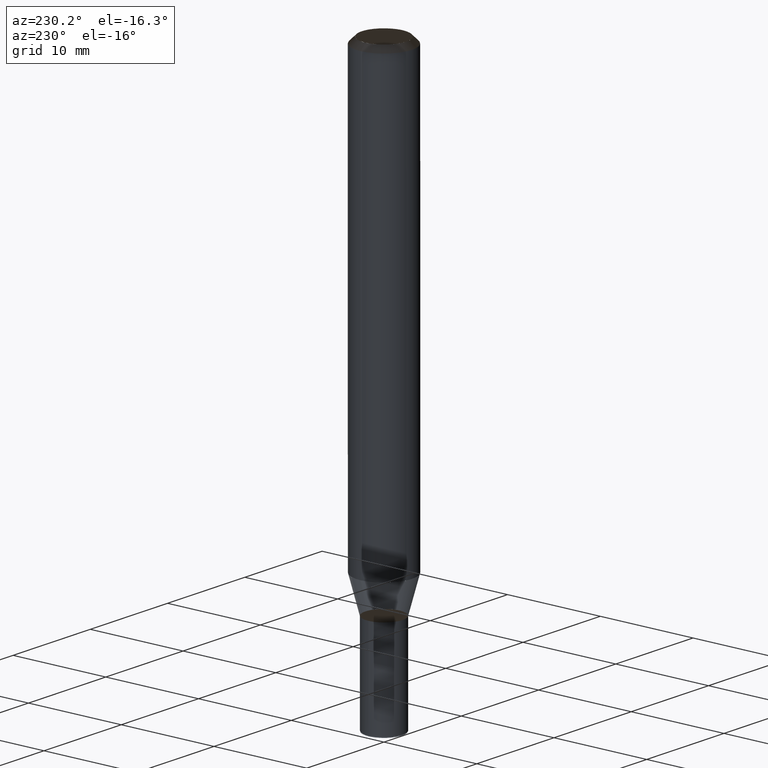
[diagram: clean part render]
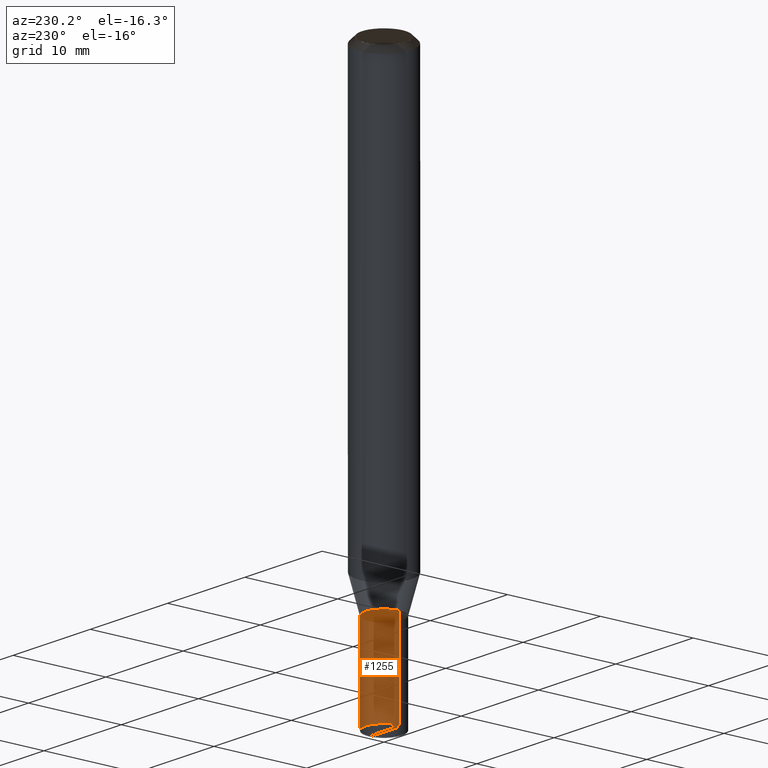
[diagram: same view with one face highlighted and labeled with its STEP entity id]
A machine part, auxiliary view. The second image highlights one B-rep face of the part: STEP entity #1255.
In plain terms, the highlighted face is a freeform B-spline surface patch.
Its self-contained STEP definition (entity closure, byte-faithful):
#1137=CARTESIAN_POINT('',(2.0,0.0,-13.632050807569));
#1138=CARTESIAN_POINT('',(2.0,2.0,-13.632050807569));
#1139=CARTESIAN_POINT('',(0.0,2.0,-13.632050807569));
#1140=CARTESIAN_POINT('',(-2.0,2.0,-13.632050807569));
#1141=CARTESIAN_POINT('',(-2.0,0.0,-13.632050807569));
#1142=CARTESIAN_POINT('',(2.0,0.0,-3.732050807569));
#1143=CARTESIAN_POINT('',(2.0,2.0,-3.732050807569));
#1144=CARTESIAN_POINT('',(0.0,2.0,-3.732050807569));
#1145=CARTESIAN_POINT('',(-2.0,2.0,-3.732050807569));
#1146=CARTESIAN_POINT('',(-2.0,0.0,-3.732050807569));
#1236=(
BOUNDED_SURFACE()
B_SPLINE_SURFACE(1,2,(
(#1137,#1138,#1139,#1140,#1141),
(#1142,#1143,#1144,#1145,#1146)
), .UNSPECIFIED.,.F.,.F.,.F.)
B_SPLINE_SURFACE_WITH_KNOTS((2,2),(3,2,3),(
0.0,1.0),(
0.0,0.5,1.0), .UNSPECIFIED.)
GEOMETRIC_REPRESENTATION_ITEM()
RATIONAL_B_SPLINE_SURFACE(((1.0,0.707106781187,1.0,0.707106781187,1.0),
(1.0,0.707106781187,1.0,0.707106781187,1.0)
))
REPRESENTATION_ITEM('')
SURFACE()
);
#1237=(
BOUNDED_CURVE()
B_SPLINE_CURVE(2,(#1142,#1143,#1144,#1145,#1146),.UNSPECIFIED.,.F.,.F.)
B_SPLINE_CURVE_WITH_KNOTS((3,2,3),
(0.0,0.5,1.0),.UNSPECIFIED.)
CURVE()
GEOMETRIC_REPRESENTATION_ITEM()
RATIONAL_B_SPLINE_CURVE((1.0,0.707106781187,1.0,0.707106781187,1.0))
REPRESENTATION_ITEM('')
);
#1238=(
BOUNDED_CURVE()
B_SPLINE_CURVE(1,(#1146,#1141),.UNSPECIFIED.,.F.,.F.)
B_SPLINE_CURVE_WITH_KNOTS((2,2),
(0.0,1.0),.UNSPECIFIED.)
CURVE()
GEOMETRIC_REPRESENTATION_ITEM()
RATIONAL_B_SPLINE_CURVE((1.0,1.0))
REPRESENTATION_ITEM('')
);
#1239=(
BOUNDED_CURVE()
B_SPLINE_CURVE(2,(#1141,#1140,#1139,#1138,#1137),.UNSPECIFIED.,.F.,.F.)
B_SPLINE_CURVE_WITH_KNOTS((3,2,3),
(0.0,0.5,1.0),.UNSPECIFIED.)
CURVE()
GEOMETRIC_REPRESENTATION_ITEM()
RATIONAL_B_SPLINE_CURVE((1.0,0.707106781187,1.0,0.707106781187,1.0))
REPRESENTATION_ITEM('')
);
#1240=(
BOUNDED_CURVE()
B_SPLINE_CURVE(1,(#1137,#1142),.UNSPECIFIED.,.F.,.F.)
B_SPLINE_CURVE_WITH_KNOTS((2,2),
(0.0,1.0),.UNSPECIFIED.)
CURVE()
GEOMETRIC_REPRESENTATION_ITEM()
RATIONAL_B_SPLINE_CURVE((1.0,1.0))
REPRESENTATION_ITEM('')
);
#1241=VERTEX_POINT('',#1137);
#1242=VERTEX_POINT('',#1141);
#1243=VERTEX_POINT('',#1142);
#1244=VERTEX_POINT('',#1146);
#1245=EDGE_CURVE('',#1243,#1244,#1237,.T.);
#1246=EDGE_CURVE('',#1244,#1242,#1238,.T.);
#1247=EDGE_CURVE('',#1242,#1241,#1239,.T.);
#1248=EDGE_CURVE('',#1241,#1243,#1240,.T.);
#1249=ORIENTED_EDGE('',*,*,#1245,.T.);
#1250=ORIENTED_EDGE('',*,*,#1246,.T.);
#1251=ORIENTED_EDGE('',*,*,#1247,.T.);
#1252=ORIENTED_EDGE('',*,*,#1248,.T.);
#1253=EDGE_LOOP('',(#1249,#1250,#1251,#1252));
#1254=FACE_OUTER_BOUND('',#1253,.T.);
#1255=ADVANCED_FACE('',(#1254),#1236,.T.);